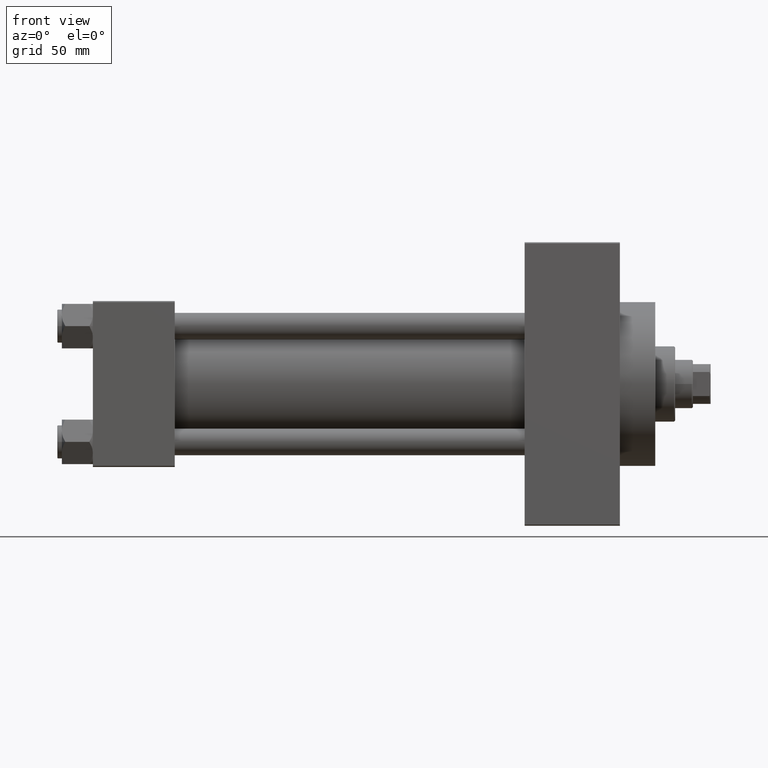
[diagram: clean part render]
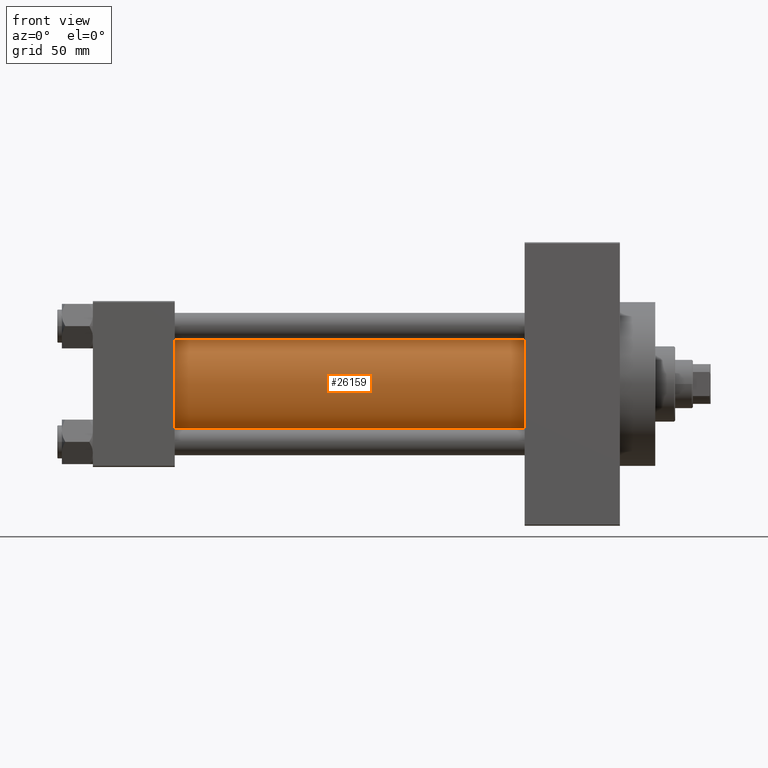
[diagram: same view with one face highlighted and labeled with its STEP entity id]
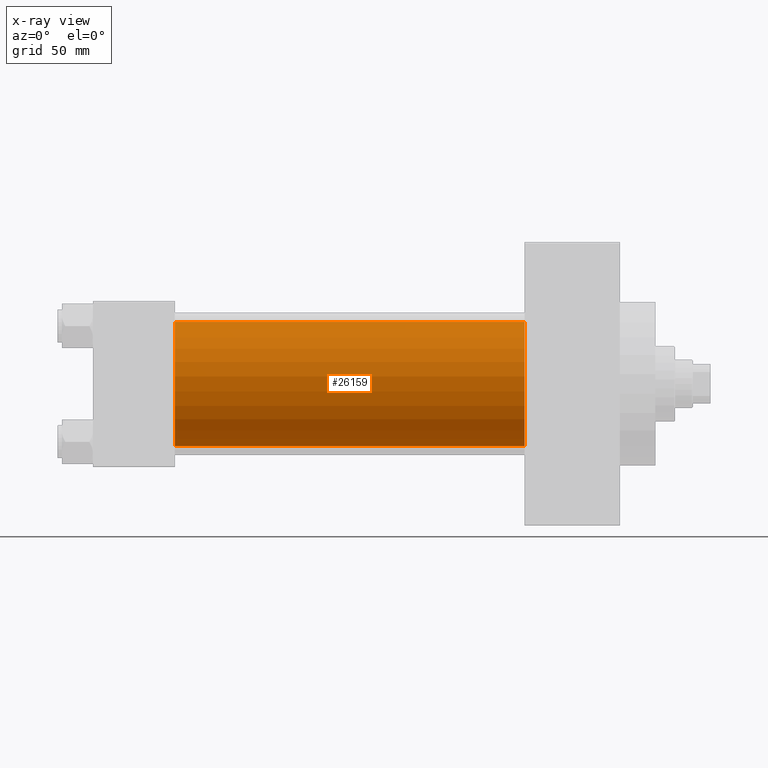
[diagram: x-ray of the same camera — body ghosted, the highlighted face saturated]
A machine part, front view. The second image highlights one B-rep face of the part: STEP entity #26159.
The next image is the same camera in x-ray: the body ghosted, the highlighted face saturated — about 0% of this face is hidden behind the body in this view.
In plain terms, the highlighted cylindrical surface (partial cylindrical patch) has radius 28 mm, axis along (-1, -0, -0).
Its self-contained STEP definition (entity closure, byte-faithful):
#1650 = EDGE_CURVE ( 'NONE', #16286, #41353, #11438, .T. ) ;
#1899 = CARTESIAN_POINT ( 'NONE',  ( 195.0000000000000000, -2.602085213965210642E-15, 28.00000000000000000 ) ) ;
#2279 = DIRECTION ( 'NONE',  ( -1.000000000000000000, -0.000000000000000000, -0.000000000000000000 ) ) ;
#10513 = VECTOR ( 'NONE', #2279, 1000.000000000000000 ) ;
#11438 = CIRCLE ( 'NONE', #45016, 28.00000000000000000 ) ;
#12167 = VERTEX_POINT ( 'NONE', #28699 ) ;
#12774 = LINE ( 'NONE', #41446, #10513 ) ;
#15699 = DIRECTION ( 'NONE',  ( 0.000000000000000000, 0.000000000000000000, 1.000000000000000000 ) ) ;
#16286 = VERTEX_POINT ( 'NONE', #1899 ) ;
#17802 = AXIS2_PLACEMENT_3D ( 'NONE', #40786, #36969, #44826 ) ;
#18096 = DIRECTION ( 'NONE',  ( 0.000000000000000000, 0.000000000000000000, -1.000000000000000000 ) ) ;
#18553 = CIRCLE ( 'NONE', #17802, 28.00000000000000000 ) ;
#19981 = CYLINDRICAL_SURFACE ( 'NONE', #31151, 28.00000000000000000 ) ;
#21142 = EDGE_CURVE ( 'NONE', #41353, #12167, #22684, .T. ) ;
#22013 = CARTESIAN_POINT ( 'NONE',  ( 37.00000000000000711, -2.602085213965210642E-15, 28.00000000000000000 ) ) ;
#22684 = LINE ( 'NONE', #44668, #27149 ) ;
#23799 = ORIENTED_EDGE ( 'NONE', *, *, #25554, .T. ) ;
#25554 = EDGE_CURVE ( 'NONE', #16286, #46091, #12774, .T. ) ;
#26083 = ORIENTED_EDGE ( 'NONE', *, *, #1650, .F. ) ;
#26159 = ADVANCED_FACE ( 'NONE', ( #44835 ), #19981, .T. ) ;
#26450 = DIRECTION ( 'NONE',  ( -1.000000000000000000, -0.000000000000000000, -0.000000000000000000 ) ) ;
#27149 = VECTOR ( 'NONE', #37271, 1000.000000000000000 ) ;
#28699 = CARTESIAN_POINT ( 'NONE',  ( 37.00000000000000711, 8.269258236473784371E-16, -28.00000000000000000 ) ) ;
#29411 = ORIENTED_EDGE ( 'NONE', *, *, #41960, .T. ) ;
#30752 = ORIENTED_EDGE ( 'NONE', *, *, #21142, .F. ) ;
#31151 = AXIS2_PLACEMENT_3D ( 'NONE', #41957, #26450, #15699 ) ;
#33808 = EDGE_LOOP ( 'NONE', ( #30752, #26083, #23799, #29411 ) ) ;
#36969 = DIRECTION ( 'NONE',  ( 1.000000000000000000, -0.000000000000000000, 0.000000000000000000 ) ) ;
#37271 = DIRECTION ( 'NONE',  ( -1.000000000000000000, -0.000000000000000000, -0.000000000000000000 ) ) ;
#38279 = CARTESIAN_POINT ( 'NONE',  ( 195.0000000000000000, 8.269258236473784371E-16, -28.00000000000000000 ) ) ;
#40786 = CARTESIAN_POINT ( 'NONE',  ( 37.00000000000000711, -2.602085213965210642E-15, 0.000000000000000000 ) ) ;
#41353 = VERTEX_POINT ( 'NONE', #38279 ) ;
#41446 = CARTESIAN_POINT ( 'NONE',  ( 195.0000000000000000, -2.602085213965210642E-15, 28.00000000000000000 ) ) ;
#41957 = CARTESIAN_POINT ( 'NONE',  ( 195.0000000000000000, -2.602085213965210642E-15, 0.000000000000000000 ) ) ;
#41960 = EDGE_CURVE ( 'NONE', #46091, #12167, #18553, .T. ) ;
#42937 = CARTESIAN_POINT ( 'NONE',  ( 195.0000000000000000, -2.602085213965210642E-15, 0.000000000000000000 ) ) ;
#44668 = CARTESIAN_POINT ( 'NONE',  ( 195.0000000000000000, 8.269258236473784371E-16, -28.00000000000000000 ) ) ;
#44826 = DIRECTION ( 'NONE',  ( 0.000000000000000000, 0.000000000000000000, 1.000000000000000000 ) ) ;
#44835 = FACE_OUTER_BOUND ( 'NONE', #33808, .T. ) ;
#45016 = AXIS2_PLACEMENT_3D ( 'NONE', #42937, #46752, #18096 ) ;
#46091 = VERTEX_POINT ( 'NONE', #22013 ) ;
#46752 = DIRECTION ( 'NONE',  ( 1.000000000000000000, 0.000000000000000000, 0.000000000000000000 ) ) ;